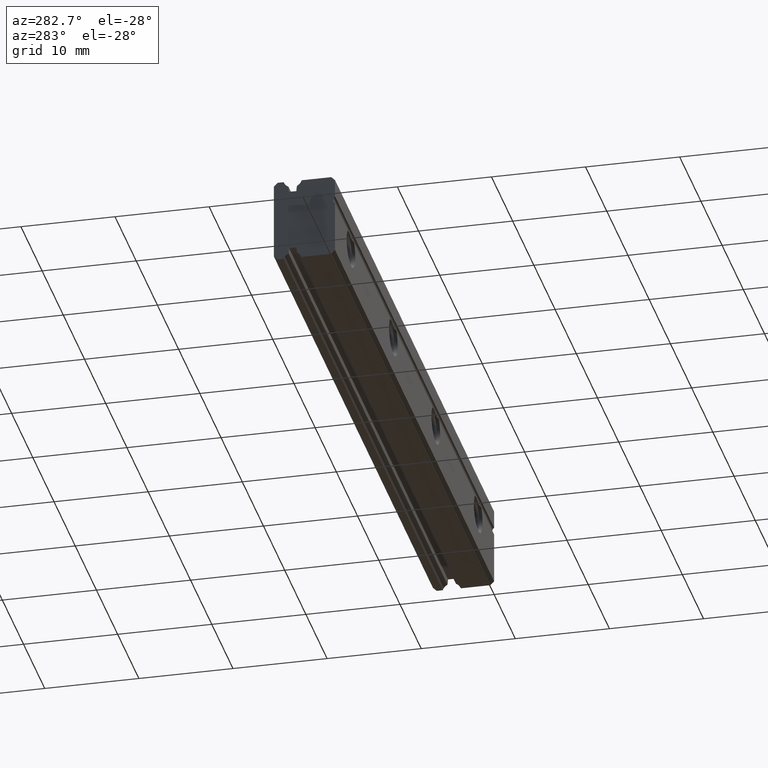
[diagram: clean part render]
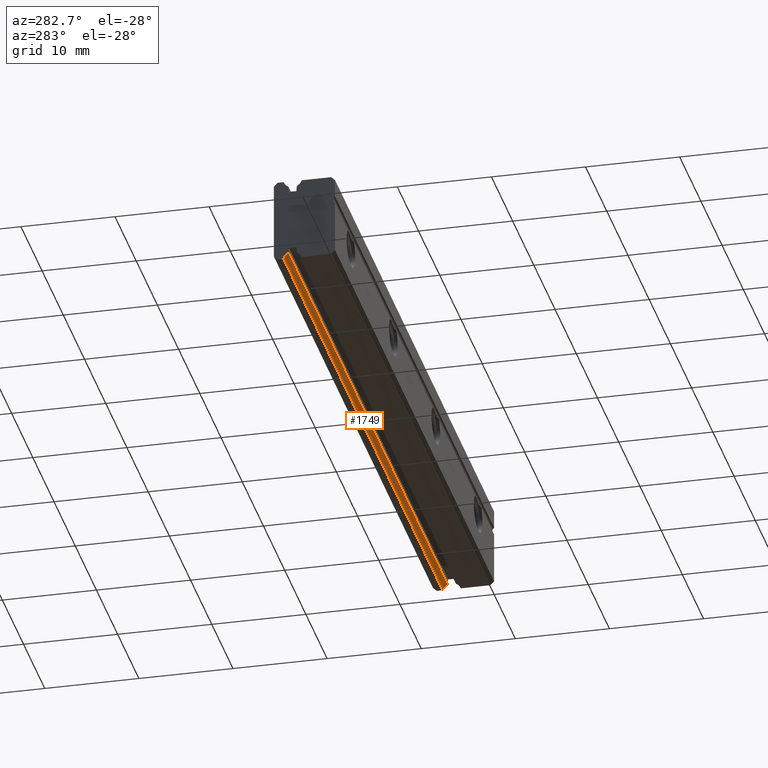
[diagram: same view with one face highlighted and labeled with its STEP entity id]
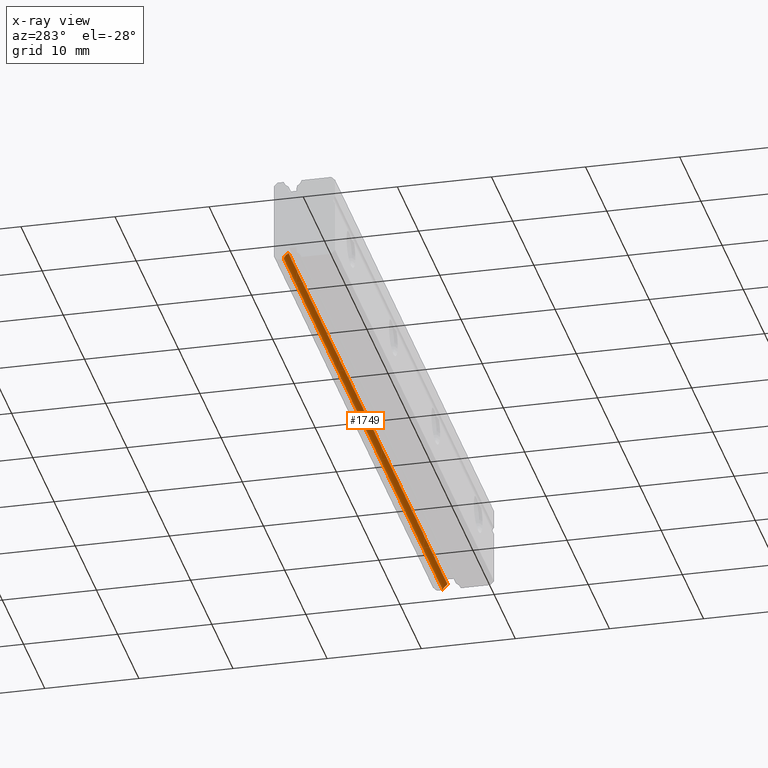
[diagram: x-ray of the same camera — body ghosted, the highlighted face saturated]
A machine part, auxiliary view. The second image highlights one B-rep face of the part: STEP entity #1749.
The next image is the same camera in x-ray: the body ghosted, the highlighted face saturated — about 0% of this face is hidden behind the body in this view.
In plain terms, the highlighted cylindrical surface (edge-blend (fillet) strip) has radius 1 mm, axis along (1, 0, 0).
Its self-contained STEP definition (entity closure, byte-faithful):
#917 = CARTESIAN_POINT ( 'NONE',  ( -75.00000000000000000, 5.453939201416948100, -4.499999999999999100 ) ) ;
#918 = CARTESIAN_POINT ( 'NONE',  ( -75.00000000000000000, 4.945000000000002100, -3.904469431007515600 ) ) ;
#923 = DIRECTION ( 'NONE',  ( 0.0000000000000000000, 8.673617379884035500E-016, -1.000000000000000000 ) ) ;
#924 = DIRECTION ( 'NONE',  ( 1.000000000000000000, 0.0000000000000000000, 0.0000000000000000000 ) ) ;
#925 = CARTESIAN_POINT ( 'NONE',  ( -75.00000000000000000, 4.500000000000001800, -4.799999999999997200 ) ) ;
#926 = AXIS2_PLACEMENT_3D ( 'NONE', #925, #924, #923 ) ;
#927 = CIRCLE ( 'NONE', #926, 1.000000000000000000 ) ;
#942 = CIRCLE ( 'NONE', #1005, 1.000000000000000000 ) ;
#943 = CARTESIAN_POINT ( 'NONE',  ( 0.0000000000000000000, 4.945000000000002100, -3.904469431007515600 ) ) ;
#944 = CARTESIAN_POINT ( 'NONE',  ( 0.0000000000000000000, 5.453939201416948100, -4.499999999999999100 ) ) ;
#1002 = DIRECTION ( 'NONE',  ( 0.0000000000000000000, 8.673617379884035500E-016, -1.000000000000000000 ) ) ;
#1003 = DIRECTION ( 'NONE',  ( 1.000000000000000000, 0.0000000000000000000, 0.0000000000000000000 ) ) ;
#1004 = CARTESIAN_POINT ( 'NONE',  ( 0.0000000000000000000, 4.500000000000001800, -4.799999999999997200 ) ) ;
#1005 = AXIS2_PLACEMENT_3D ( 'NONE', #1004, #1003, #1002 ) ;
#1018 = DIRECTION ( 'NONE',  ( 0.0000000000000000000, 0.0000000000000000000, -1.000000000000000000 ) ) ;
#1019 = DIRECTION ( 'NONE',  ( 1.000000000000000000, 0.0000000000000000000, 0.0000000000000000000 ) ) ;
#1020 = CARTESIAN_POINT ( 'NONE',  ( -75.00000000000000000, 4.500000000000001800, -4.799999999999997200 ) ) ;
#1021 = AXIS2_PLACEMENT_3D ( 'NONE', #1020, #1019, #1018 ) ;
#1022 = CYLINDRICAL_SURFACE ( 'NONE', #1021, 1.000000000000000000 ) ;
#1023 = FACE_OUTER_BOUND ( 'NONE', #1750, .T. ) ;
#1024 = DIRECTION ( 'NONE',  ( 1.000000000000000000, 0.0000000000000000000, 0.0000000000000000000 ) ) ;
#1025 = VECTOR ( 'NONE', #1024, 1000.000000000000000 ) ;
#1026 = CARTESIAN_POINT ( 'NONE',  ( -75.00000000000000000, 4.945000000000002100, -3.904469431007515600 ) ) ;
#1027 = LINE ( 'NONE', #1026, #1025 ) ;
#1039 = DIRECTION ( 'NONE',  ( 1.000000000000000000, 0.0000000000000000000, 0.0000000000000000000 ) ) ;
#1040 = VECTOR ( 'NONE', #1039, 1000.000000000000000 ) ;
#1041 = CARTESIAN_POINT ( 'NONE',  ( -75.00000000000000000, 5.453939201416948100, -4.499999999999999100 ) ) ;
#1042 = LINE ( 'NONE', #1041, #1040 ) ;
#1683 = EDGE_CURVE ( 'NONE', #1687, #1686, #927, .T. ) ;
#1686 = VERTEX_POINT ( 'NONE', #918 ) ;
#1687 = VERTEX_POINT ( 'NONE', #917 ) ;
#1709 = VERTEX_POINT ( 'NONE', #944 ) ;
#1710 = VERTEX_POINT ( 'NONE', #943 ) ;
#1713 = EDGE_CURVE ( 'NONE', #1709, #1710, #942, .T. ) ;
#1746 = ORIENTED_EDGE ( 'NONE', *, *, #1748, .F. ) ;
#1748 = EDGE_CURVE ( 'NONE', #1686, #1710, #1027, .T. ) ;
#1749 = ADVANCED_FACE ( 'NONE', ( #1023 ), #1022, .F. ) ;
#1750 = EDGE_LOOP ( 'NONE', ( #1753, #1746, #1752, #1751 ) ) ;
#1751 = ORIENTED_EDGE ( 'NONE', *, *, #1791, .T. ) ;
#1752 = ORIENTED_EDGE ( 'NONE', *, *, #1683, .F. ) ;
#1753 = ORIENTED_EDGE ( 'NONE', *, *, #1713, .T. ) ;
#1791 = EDGE_CURVE ( 'NONE', #1687, #1709, #1042, .T. ) ;